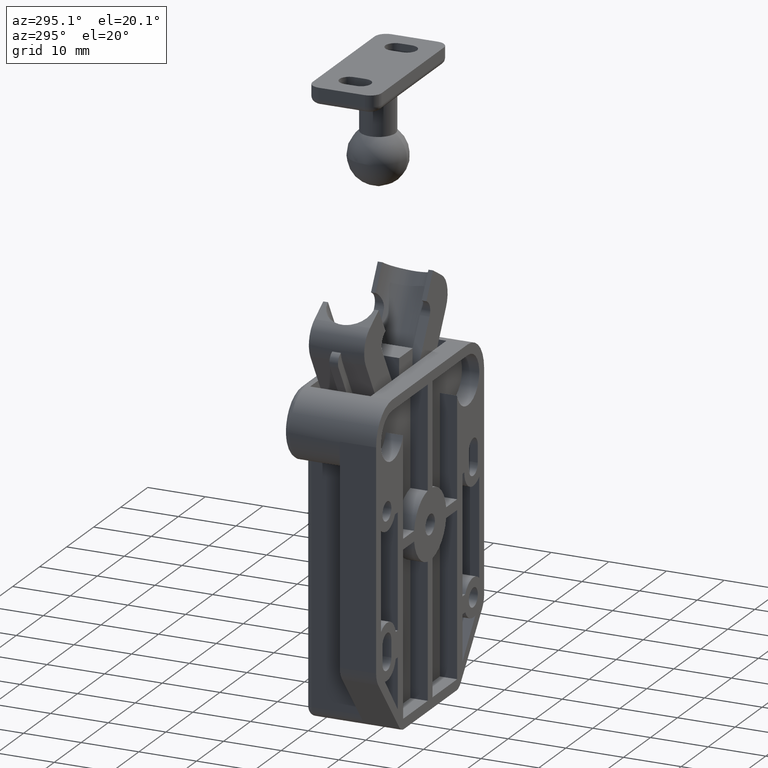
[diagram: clean part render]
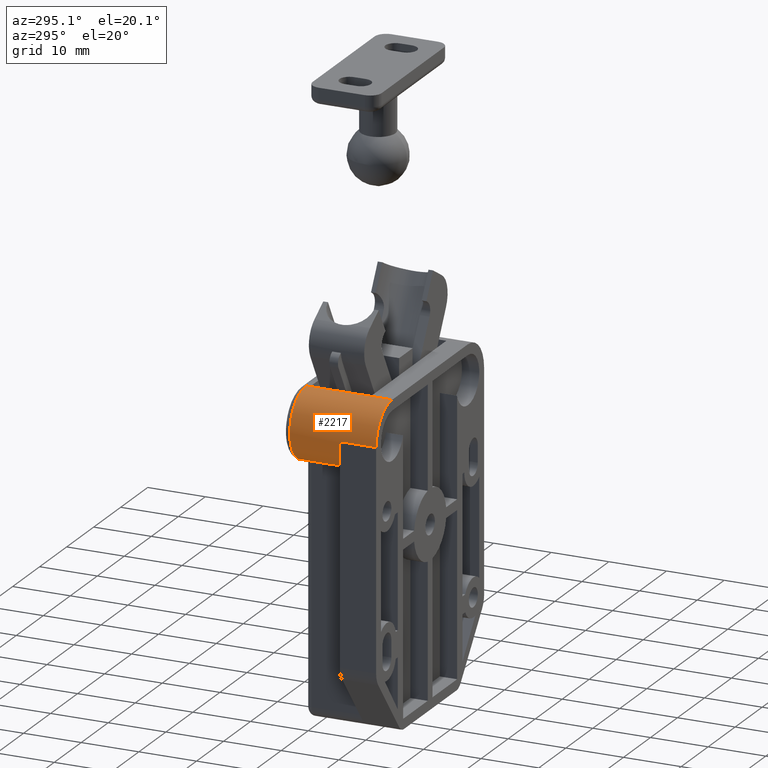
[diagram: same view with one face highlighted and labeled with its STEP entity id]
A machine part, auxiliary view. The second image highlights one B-rep face of the part: STEP entity #2217.
In plain terms, the highlighted cylindrical surface (partial cylindrical patch) has radius 6 mm, axis along (0, -1, -0).
Its self-contained STEP definition (entity closure, byte-faithful):
#187 = EDGE_CURVE ( 'NONE', #2829, #1071, #7444, .T. ) ;
#209 = VECTOR ( 'NONE', #416, 1000.000000000000000 ) ;
#365 = FACE_OUTER_BOUND ( 'NONE', #2734, .T. ) ;
#372 = DIRECTION ( 'NONE',  ( -0.0000000000000000000, -0.0000000000000000000, -1.000000000000000000 ) ) ;
#416 = DIRECTION ( 'NONE',  ( -0.0000000000000000000, -0.0000000000000000000, -1.000000000000000000 ) ) ;
#539 = VERTEX_POINT ( 'NONE', #4982 ) ;
#563 = AXIS2_PLACEMENT_3D ( 'NONE', #8075, #3896, #8763 ) ;
#941 = LINE ( 'NONE', #1472, #6234 ) ;
#1061 = DIRECTION ( 'NONE',  ( 0.0000000000000000000, 0.0000000000000000000, -1.000000000000000000 ) ) ;
#1071 = VERTEX_POINT ( 'NONE', #6562 ) ;
#1130 = CIRCLE ( 'NONE', #1527, 5.999999999999998200 ) ;
#1180 = CARTESIAN_POINT ( 'NONE',  ( 44.99959999999999400, -13.99999999999976400, 16.00000000000000000 ) ) ;
#1331 = ORIENTED_EDGE ( 'NONE', *, *, #3343, .F. ) ;
#1339 = CARTESIAN_POINT ( 'NONE',  ( 56.99960000000000100, -14.00000000000000000, 14.24999999999999100 ) ) ;
#1472 = CARTESIAN_POINT ( 'NONE',  ( 56.99960000000000100, -14.00000000000000000, 6.500000000000158100 ) ) ;
#1479 = LINE ( 'NONE', #4484, #8632 ) ;
#1527 = AXIS2_PLACEMENT_3D ( 'NONE', #4488, #372, #5187 ) ;
#1868 = VERTEX_POINT ( 'NONE', #5707 ) ;
#2078 = EDGE_CURVE ( 'NONE', #5952, #539, #6955, .T. ) ;
#2217 = ADVANCED_FACE ( 'NONE', ( #365 ), #7288, .T. ) ;
#2383 = EDGE_CURVE ( 'NONE', #1868, #2829, #1130, .T. ) ;
#2734 = EDGE_LOOP ( 'NONE', ( #5597, #7925, #7501, #1331, #3807, #8927, #3377, #5002 ) ) ;
#2786 = EDGE_CURVE ( 'NONE', #1868, #5952, #941, .T. ) ;
#2829 = VERTEX_POINT ( 'NONE', #4996 ) ;
#2875 = LINE ( 'NONE', #7266, #8415 ) ;
#2984 = EDGE_CURVE ( 'NONE', #4108, #4000, #2875, .T. ) ;
#3119 = DIRECTION ( 'NONE',  ( 0.0000000000000000000, 0.0000000000000000000, -1.000000000000000000 ) ) ;
#3343 = EDGE_CURVE ( 'NONE', #539, #4135, #1479, .T. ) ;
#3377 = ORIENTED_EDGE ( 'NONE', *, *, #2383, .T. ) ;
#3548 = DIRECTION ( 'NONE',  ( 0.0000000000000000000, 0.0000000000000000000, -1.000000000000000000 ) ) ;
#3807 = ORIENTED_EDGE ( 'NONE', *, *, #2078, .F. ) ;
#3896 = DIRECTION ( 'NONE',  ( -0.0000000000000000000, -0.0000000000000000000, -1.000000000000000000 ) ) ;
#4000 = VERTEX_POINT ( 'NONE', #5979 ) ;
#4108 = VERTEX_POINT ( 'NONE', #8171 ) ;
#4135 = VERTEX_POINT ( 'NONE', #4700 ) ;
#4263 = DIRECTION ( 'NONE',  ( 0.0000000000000000000, 0.0000000000000000000, -1.000000000000000000 ) ) ;
#4484 = CARTESIAN_POINT ( 'NONE',  ( 56.99960000000000100, -14.00000000000000000, 6.500000000000158100 ) ) ;
#4488 = CARTESIAN_POINT ( 'NONE',  ( 50.99960000000000100, -14.00000000000000000, 15.00000000000000000 ) ) ;
#4607 = EDGE_CURVE ( 'NONE', #4108, #1071, #6213, .T. ) ;
#4700 = CARTESIAN_POINT ( 'NONE',  ( 56.99960000000000100, -14.00000000000000000, -0.0000000000000000000 ) ) ;
#4982 = CARTESIAN_POINT ( 'NONE',  ( 56.99960000000000100, -14.00000000000000000, 3.749999999999996400 ) ) ;
#4996 = CARTESIAN_POINT ( 'NONE',  ( 44.99959999999999400, -13.99999999999976400, 15.00000000000000000 ) ) ;
#5002 = ORIENTED_EDGE ( 'NONE', *, *, #187, .T. ) ;
#5187 = DIRECTION ( 'NONE',  ( -1.000000000000000000, 0.0000000000000000000, 0.0000000000000000000 ) ) ;
#5465 = DIRECTION ( 'NONE',  ( 0.0000000000000000000, 0.0000000000000000000, -1.000000000000000000 ) ) ;
#5575 = CARTESIAN_POINT ( 'NONE',  ( 56.99960000000000100, -14.00000000000000000, 14.24999999999999100 ) ) ;
#5597 = ORIENTED_EDGE ( 'NONE', *, *, #4607, .F. ) ;
#5707 = CARTESIAN_POINT ( 'NONE',  ( 56.99960000000000100, -14.00000000000000000, 15.00000000000000000 ) ) ;
#5952 = VERTEX_POINT ( 'NONE', #5575 ) ;
#5979 = CARTESIAN_POINT ( 'NONE',  ( 50.99960000000000100, -20.00000000000000000, -0.0000000000000000000 ) ) ;
#6213 = CIRCLE ( 'NONE', #563, 6.000000000000116400 ) ;
#6234 = VECTOR ( 'NONE', #4263, 1000.000000000000000 ) ;
#6330 = DIRECTION ( 'NONE',  ( 0.0000000000000000000, 0.0000000000000000000, -1.000000000000000000 ) ) ;
#6562 = CARTESIAN_POINT ( 'NONE',  ( 44.99959999999999400, -13.99999999999976400, 6.300000000000158800 ) ) ;
#6784 = AXIS2_PLACEMENT_3D ( 'NONE', #6987, #6330, #8411 ) ;
#6894 = AXIS2_PLACEMENT_3D ( 'NONE', #7716, #3548, #8419 ) ;
#6955 = LINE ( 'NONE', #1339, #8824 ) ;
#6987 = CARTESIAN_POINT ( 'NONE',  ( 50.99960000000000100, -14.00000000000000000, 6.500000000000158100 ) ) ;
#7011 = CIRCLE ( 'NONE', #6894, 5.999999999999998200 ) ;
#7266 = CARTESIAN_POINT ( 'NONE',  ( 50.99960000000000100, -20.00000000000000000, 6.500000000000158100 ) ) ;
#7288 = CYLINDRICAL_SURFACE ( 'NONE', #6784, 5.999999999999998200 ) ;
#7444 = LINE ( 'NONE', #1180, #209 ) ;
#7501 = ORIENTED_EDGE ( 'NONE', *, *, #8408, .F. ) ;
#7716 = CARTESIAN_POINT ( 'NONE',  ( 50.99960000000000100, -14.00000000000000000, -0.0000000000000000000 ) ) ;
#7925 = ORIENTED_EDGE ( 'NONE', *, *, #2984, .T. ) ;
#8075 = CARTESIAN_POINT ( 'NONE',  ( 50.99959999999999400, -13.99999999999976400, 6.300000000000158800 ) ) ;
#8171 = CARTESIAN_POINT ( 'NONE',  ( 50.99960000000000100, -19.99999999999988300, 6.300000000000158800 ) ) ;
#8408 = EDGE_CURVE ( 'NONE', #4135, #4000, #7011, .T. ) ;
#8411 = DIRECTION ( 'NONE',  ( -1.000000000000000000, 0.0000000000000000000, 0.0000000000000000000 ) ) ;
#8415 = VECTOR ( 'NONE', #3119, 1000.000000000000000 ) ;
#8419 = DIRECTION ( 'NONE',  ( -1.000000000000000000, 0.0000000000000000000, 0.0000000000000000000 ) ) ;
#8632 = VECTOR ( 'NONE', #1061, 1000.000000000000000 ) ;
#8763 = DIRECTION ( 'NONE',  ( 1.000000000000000000, 0.0000000000000000000, 0.0000000000000000000 ) ) ;
#8824 = VECTOR ( 'NONE', #5465, 1000.000000000000000 ) ;
#8927 = ORIENTED_EDGE ( 'NONE', *, *, #2786, .F. ) ;